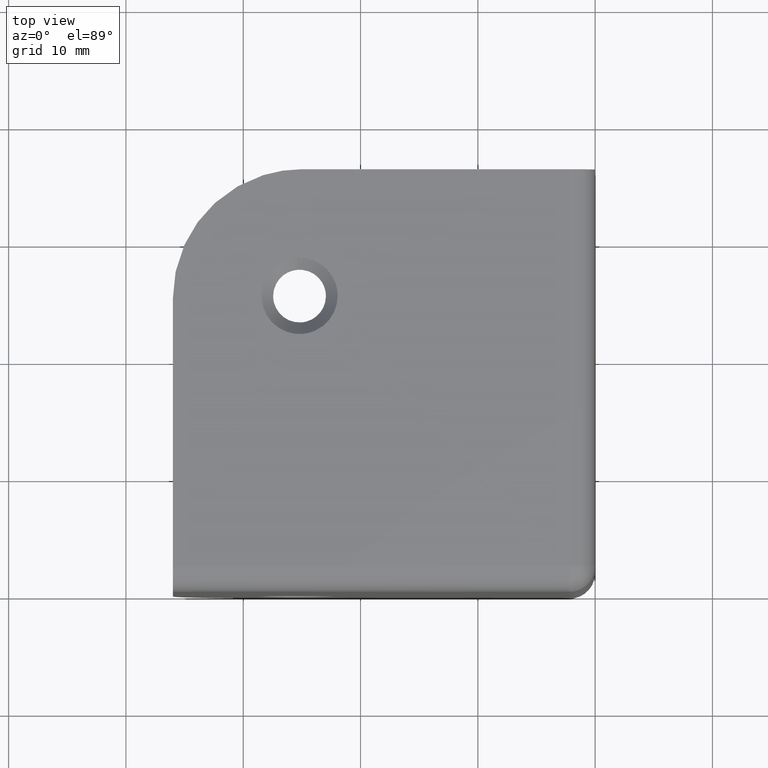
[diagram: clean part render]
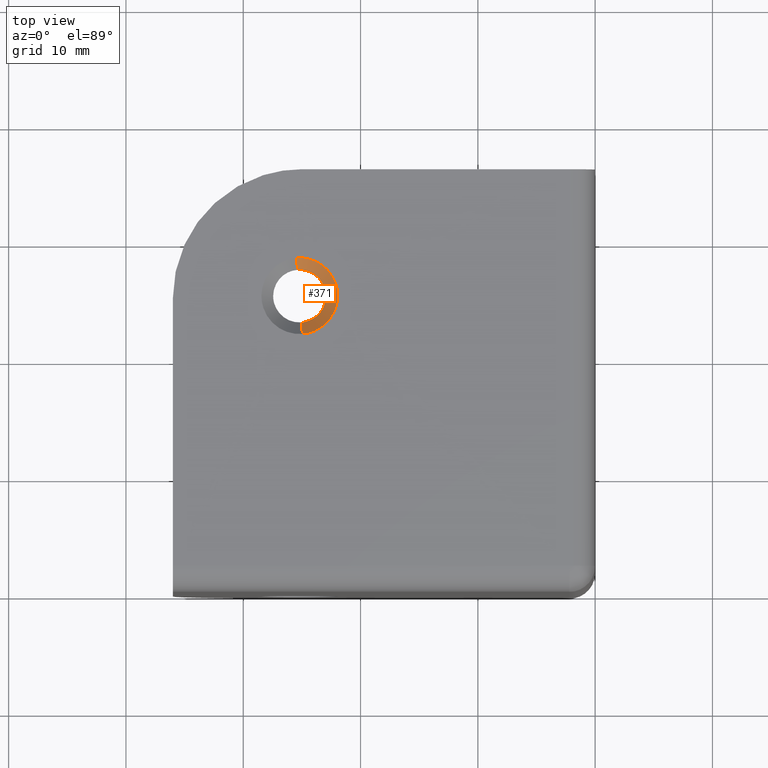
[diagram: same view with one face highlighted and labeled with its STEP entity id]
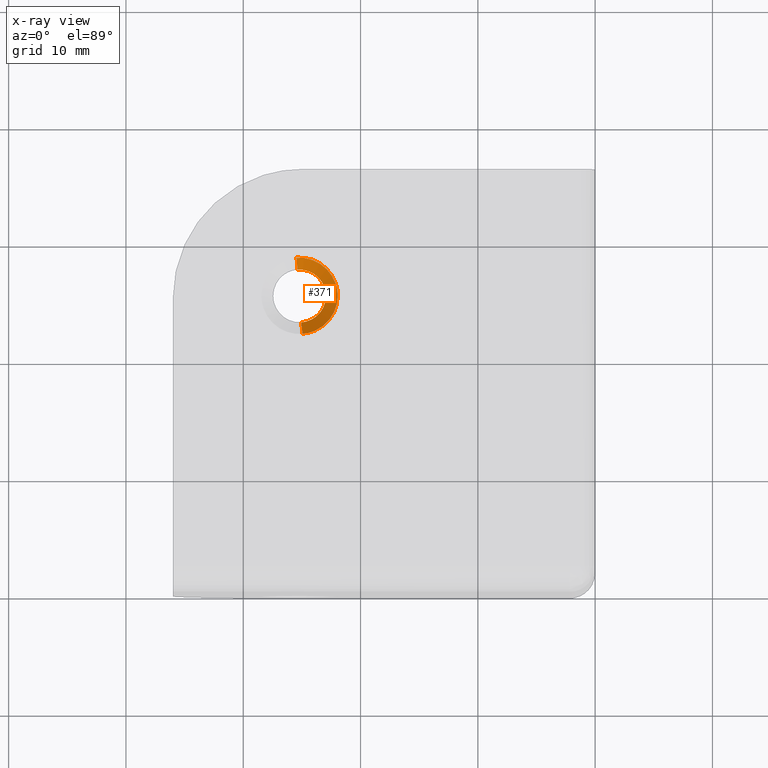
[diagram: x-ray of the same camera — body ghosted, the highlighted face saturated]
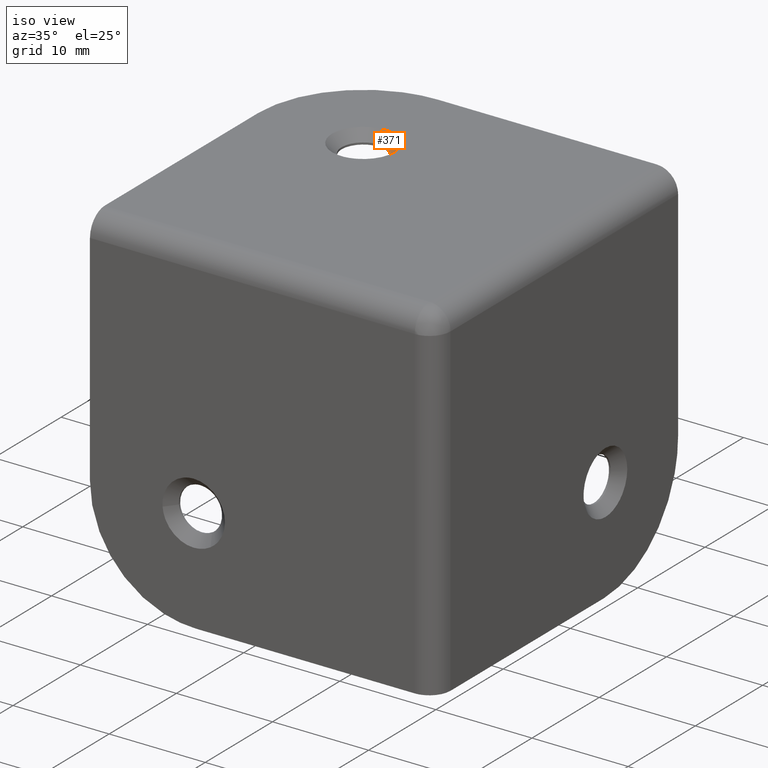
[diagram: same view with one face highlighted and labeled with its STEP entity id]
A machine part, top view. The second image highlights one B-rep face of the part: STEP entity #371.
The next image is the same camera in x-ray: the body ghosted, the highlighted face saturated — about 0% of this face is hidden behind the body in this view.
A second angle (iso view) of the same face is appended — the face is thin or edge-on in the first view.
In plain terms, the highlighted face is a freeform B-spline surface patch.
Its self-contained STEP definition (entity closure, byte-faithful):
#62=CARTESIAN_POINT('',(-24.943273504321450,27.435305685228890,35.0));
#63=VERTEX_POINT('',#62);
#64=CARTESIAN_POINT('',(-22.949999999999999,25.199999999999999,35.0));
#65=VERTEX_POINT('',#64);
#66=CARTESIAN_POINT('',(-24.943273504321439,27.435305685228894,35.000000000000007));
#67=CARTESIAN_POINT('',(-22.949999999999999,27.206376762844538,34.999999999999993));
#68=CARTESIAN_POINT('',(-22.949999999999999,25.199999999999999,35.0));
#76=(BOUNDED_CURVE()B_SPLINE_CURVE(2,(#66,#67,#68),.UNSPECIFIED.,.F.,.U.)B_SPLINE_CURVE_WITH_KNOTS((3,3),(0.269767755878539,0.500000000000000),.UNSPECIFIED.)CURVE()GEOMETRIC_REPRESENTATION_ITEM()RATIONAL_B_SPLINE_CURVE((0.957343736456858,0.730266147778482,1.0))REPRESENTATION_ITEM(''));
#77=EDGE_CURVE('',#63,#65,#76,.T.);
#116=CARTESIAN_POINT('',(-25.062640976774532,22.954196691885389,35.000000000000043));
#117=VERTEX_POINT('',#116);
#123=CARTESIAN_POINT('',(-22.949999999999999,25.199999999999999,35.0));
#124=CARTESIAN_POINT('',(-22.949999999999999,23.083411169372052,34.999999999999993));
#125=CARTESIAN_POINT('',(-25.062640976774535,22.954196691885386,35.000000000000007));
#133=(BOUNDED_CURVE()B_SPLINE_CURVE(2,(#123,#124,#125),.UNSPECIFIED.,.F.,.U.)B_SPLINE_CURVE_WITH_KNOTS((3,3),(0.500000000000000,0.739332976895744),.UNSPECIFIED.)CURVE()GEOMETRIC_REPRESENTATION_ITEM()RATIONAL_B_SPLINE_CURVE((1.0,0.719603976115200,0.976072073079034))REPRESENTATION_ITEM(''));
#134=EDGE_CURVE('',#65,#117,#133,.T.);
#161=CARTESIAN_POINT('',(-25.376532965433309,27.443064000901860,35.000000000005898));
#162=VERTEX_POINT('',#161);
#163=CARTESIAN_POINT('',(-25.376532965433309,27.443064000901852,35.000000000005898));
#164=CARTESIAN_POINT('',(-25.288402740812668,27.449999999999996,35.0));
#165=CARTESIAN_POINT('',(-25.199999999999999,27.449999999999999,35.0));
#166=CARTESIAN_POINT('',(-25.071216221180222,27.449999999999996,35.000000000000007));
#167=CARTESIAN_POINT('',(-24.943273504321446,27.435305685228894,35.0));
#175=(BOUNDED_CURVE()B_SPLINE_CURVE(2,(#163,#164,#165,#166,#167),.UNSPECIFIED.,.F.,.U.)B_SPLINE_CURVE_WITH_KNOTS((3,2,3),(0.236331300625859,0.250000000000000,0.269767755878539),.UNSPECIFIED.)CURVE()GEOMETRIC_REPRESENTATION_ITEM()RATIONAL_B_SPLINE_CURVE((0.969723356157398,0.983986122573257,1.0,0.976840633408065,0.957343736456858))REPRESENTATION_ITEM(''));
#176=EDGE_CURVE('',#162,#63,#175,.T.);
#264=CARTESIAN_POINT('',(-25.454992061185930,28.439981334636268,36.000000000009109));
#265=VERTEX_POINT('',#264);
#266=CARTESIAN_POINT('',(-25.376532965433309,27.443064000901860,35.000000000005898));
#267=CARTESIAN_POINT('',(-25.454992061185930,28.439981334636268,36.000000000009109));
#268=QUASI_UNIFORM_CURVE('',1,(#266,#267),.UNSPECIFIED.,.F.,.U.);
#269=EDGE_CURVE('',#162,#265,#268,.T.);
#286=CARTESIAN_POINT('',(-24.945007938814069,21.960018665363730,36.000000000009109));
#287=VERTEX_POINT('',#286);
#303=CARTESIAN_POINT('',(-25.062640976774532,22.954196691885389,35.000000000000043));
#304=CARTESIAN_POINT('',(-24.945007938814069,21.960018665363730,36.000000000009109));
#305=QUASI_UNIFORM_CURVE('',1,(#303,#304),.UNSPECIFIED.,.F.,.U.);
#306=EDGE_CURVE('',#117,#287,#305,.T.);
#312=CARTESIAN_POINT('',(-25.094796023541452,22.976399590887734,34.974999999999980));
#313=CARTESIAN_POINT('',(-25.060338372365766,22.979111466848444,34.975000000000016));
#314=CARTESIAN_POINT('',(-22.807287444449351,23.156430420438259,34.974999999999994));
#315=CARTESIAN_POINT('',(-22.981858932443799,25.374571487994459,34.974999999999987));
#316=CARTESIAN_POINT('',(-23.156430420438259,27.592712555550655,34.974999999999994));
#317=CARTESIAN_POINT('',(-25.390306529900972,27.416902692901200,34.975000000000001));
#318=CARTESIAN_POINT('',(-25.405949372699599,27.415671574473361,34.974999999999994));
#319=CARTESIAN_POINT('',(-25.045119651511445,21.926435465124317,36.025624999999991));
#320=CARTESIAN_POINT('',(-24.994391407182292,21.930427864537261,36.025625000000012));
#321=CARTESIAN_POINT('',(-21.677470083246888,22.191475234133943,36.025625000000005));
#322=CARTESIAN_POINT('',(-21.934472658690421,25.457002575443529,36.025625000000012));
#323=CARTESIAN_POINT('',(-22.191475234133943,28.722529916753114,36.025625000000005));
#324=CARTESIAN_POINT('',(-25.480167562699719,28.463704217273946,36.025625000000005));
#325=CARTESIAN_POINT('',(-25.503196815258043,28.461891775790711,36.025625000000005));
#333=(BOUNDED_SURFACE()B_SPLINE_SURFACE(2,1,((#312,#319),(#313,#320),(#314,#321),(#315,#322),(#316,#323),(#317,#324),(#318,#325)),.UNSPECIFIED.,.F.,.F.,.U.)B_SPLINE_SURFACE_WITH_KNOTS((3,1,2,1,3),(2,2),(0.0,0.121588605927928,5.548821806921414,10.976055007914900,11.030662245628740),(0.0,1.0),.UNSPECIFIED.)GEOMETRIC_REPRESENTATION_ITEM()RATIONAL_B_SPLINE_SURFACE(((1.013123621868599,1.013123621868599),(1.006561810934299,1.006561810934299),(0.707106781186548,0.707106781186548),(1.0,1.0),(0.707106781186548,0.707106781186548),(1.002947006150683,1.002947006150683),(1.005894012301366,1.005894012301366)))REPRESENTATION_ITEM('')SURFACE());
#334=ORIENTED_EDGE('',*,*,#176,.T.);
#335=ORIENTED_EDGE('',*,*,#77,.T.);
#336=ORIENTED_EDGE('',*,*,#134,.T.);
#337=ORIENTED_EDGE('',*,*,#306,.T.);
#338=CARTESIAN_POINT('',(-21.949999999999999,25.199999999999999,36.0));
#339=VERTEX_POINT('',#338);
#340=CARTESIAN_POINT('',(-21.949999999999999,25.199999999999999,36.0));
#341=CARTESIAN_POINT('',(-21.950000000000003,22.195730902240513,36.000000000000007));
#342=CARTESIAN_POINT('',(-24.945007938814069,21.960018665363737,36.000000000009109));
#350=(BOUNDED_CURVE()B_SPLINE_CURVE(2,(#340,#341,#342),.UNSPECIFIED.,.F.,.U.)B_SPLINE_CURVE_WITH_KNOTS((3,3),(0.500000000000000,0.736331300625390),.UNSPECIFIED.)CURVE()GEOMETRIC_REPRESENTATION_ITEM()RATIONAL_B_SPLINE_CURVE((1.0,0.723120658613840,0.969723356156420))REPRESENTATION_ITEM(''));
#351=EDGE_CURVE('',#339,#287,#350,.T.);
#352=ORIENTED_EDGE('',*,*,#351,.F.);
#353=CARTESIAN_POINT('',(-25.454992061185937,28.439981334636272,36.000000000009116));
#354=CARTESIAN_POINT('',(-25.327692847844972,28.449999999999996,36.000000000000007));
#355=CARTESIAN_POINT('',(-25.199999999999999,28.449999999999999,36.0));
#356=CARTESIAN_POINT('',(-21.950000000000003,28.450000000000003,36.0));
#357=CARTESIAN_POINT('',(-21.949999999999999,25.199999999999999,36.0));
#365=(BOUNDED_CURVE()B_SPLINE_CURVE(2,(#353,#354,#355,#356,#357),.UNSPECIFIED.,.F.,.U.)B_SPLINE_CURVE_WITH_KNOTS((3,2,3),(0.236331300625389,0.250000000000000,0.500000000000000),.UNSPECIFIED.)CURVE()GEOMETRIC_REPRESENTATION_ITEM()RATIONAL_B_SPLINE_CURVE((0.969723356156418,0.983986122572707,1.0,0.707106781186547,1.0))REPRESENTATION_ITEM(''));
#366=EDGE_CURVE('',#265,#339,#365,.T.);
#367=ORIENTED_EDGE('',*,*,#366,.F.);
#368=ORIENTED_EDGE('',*,*,#269,.F.);
#369=EDGE_LOOP('',(#334,#335,#336,#337,#352,#367,#368));
#370=FACE_OUTER_BOUND('',#369,.T.);
#371=ADVANCED_FACE('',(#370),#333,.F.);